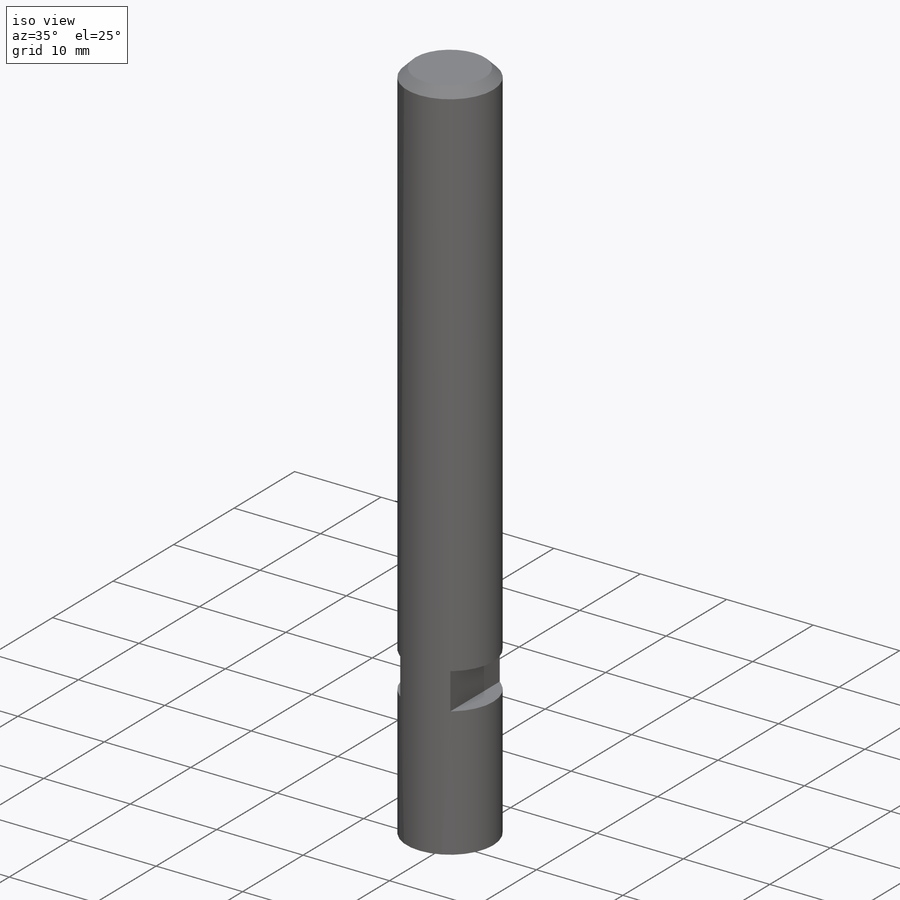
[diagram: iso view]
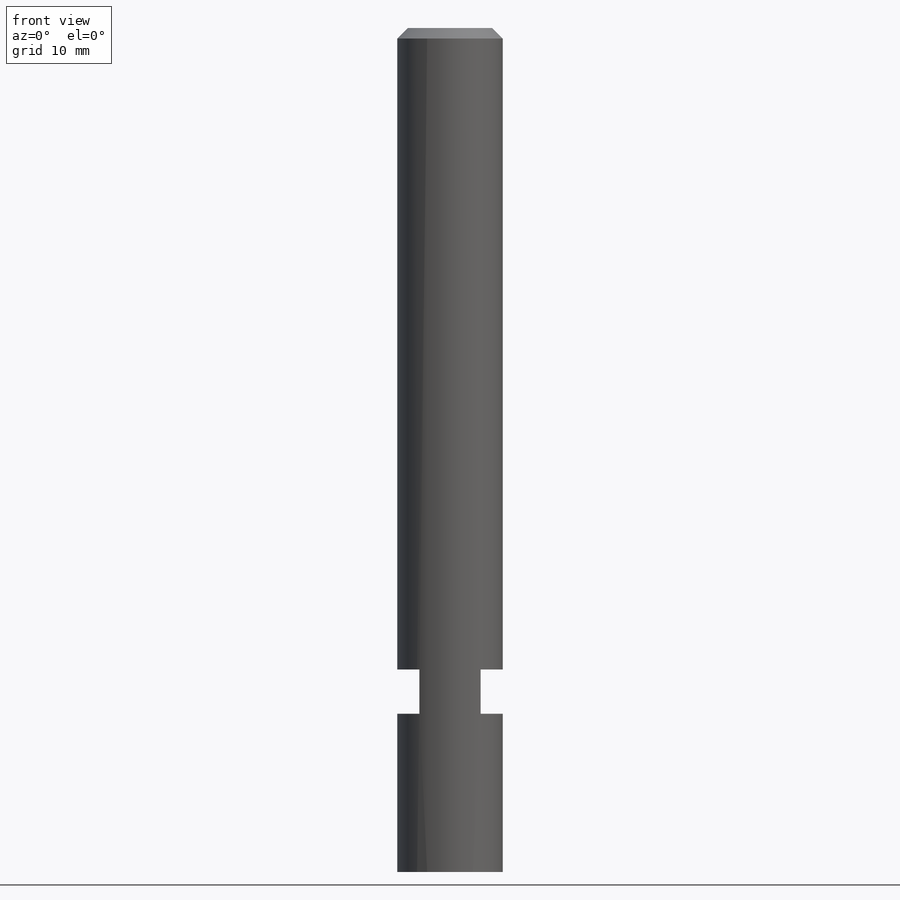
[diagram: front view]
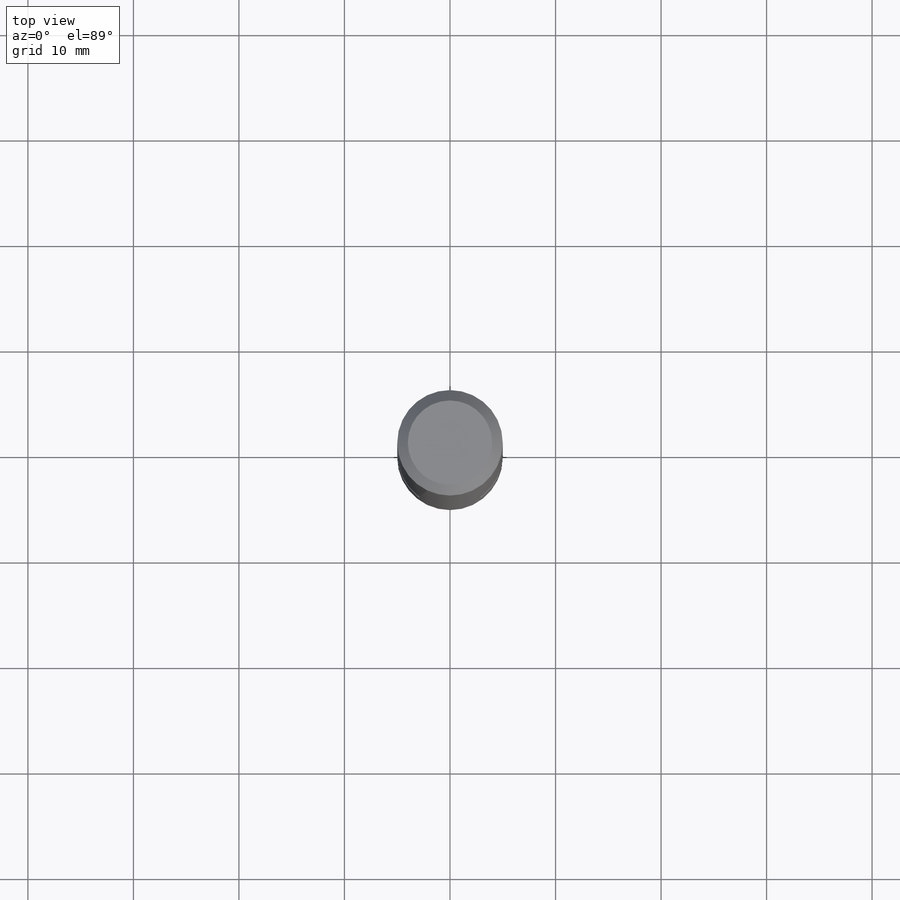
[diagram: top view]
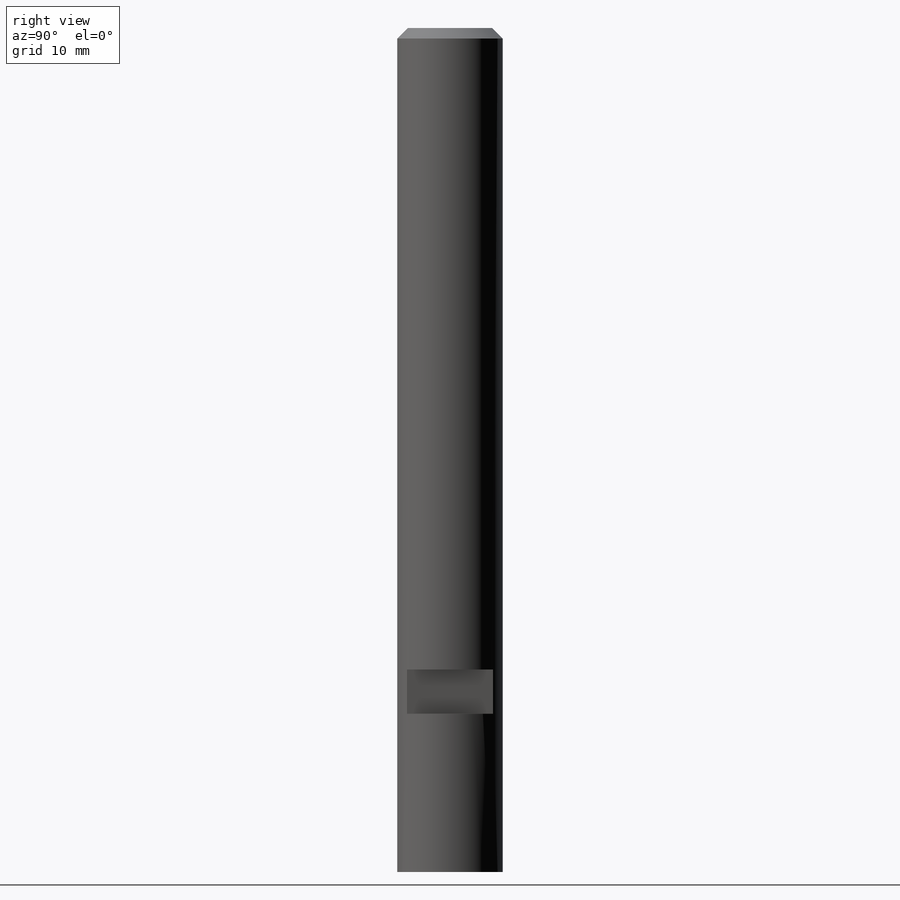
[diagram: right view]
SOLIDWORKS PART (.sldprt)
format: sldprt  version: not decoded by parser v0  size: 223,232 bytes
history: native  units: mm
features: sketch x4, plane x3, material x1, revolve x1, hole x1, thread x1, cut_extrude x1, mirror x1, chamfer x1 (+9 scaffold rows collapsed)
feature tree (23):
  scaffold x9  (default folders/planes/origin — collapsed)
  material  "1.4301 (X5CrNi18-10)"
  plane  "Vorne"
  plane  "Oben"
  plane  "Rechts"
  sketch  "Skizze1"  dims[D1=80.0mm D2=20.0mm D3=10.0mm D4=15.0mm]
  revolve  "Rotation1"  Angle=360deg
  hole  "M4 Gewindebohrung1"  Diameter=3.3mm Depth=40mm
  sketch  "Skizze4"
  sketch  "Skizze3"  dims[hole-wizard template sketch: 46 standard entries collapsed; hole parameters kept: c15.Bohrerdurchmesser=3.3mm c15.Bohrungstiefe=40.0mm c15.D3=~14.816244mm c15.Spitzenwinkel=118.0deg]
  thread  "Bohrungsgewinde1"  Diameter=50mm  [1 undecoded]
  sketch  "Skizze5"  dims[D1=15.0mm D2=5.8mm D3=4.2mm]
  cut_extrude  "Schnitt-Linear austragen1"  Depth=20mm
  mirror  "Spiegeln1"
  chamfer  "Fase1"  Distance=1mm Angle=45deg
decode coverage: 8 of 10 modeling features carry decoded parameters
note: ~ marks probable driven/reference dimensions
note: 1 parameter value undecoded
note: suppression state not decoded; provenance and decode notes live in map.json
